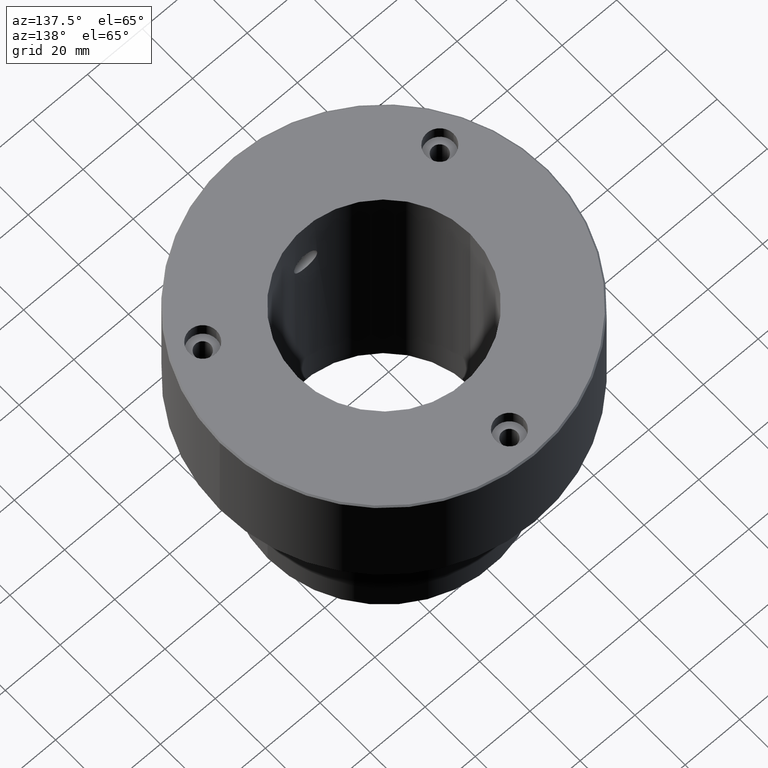
[diagram: clean part render]
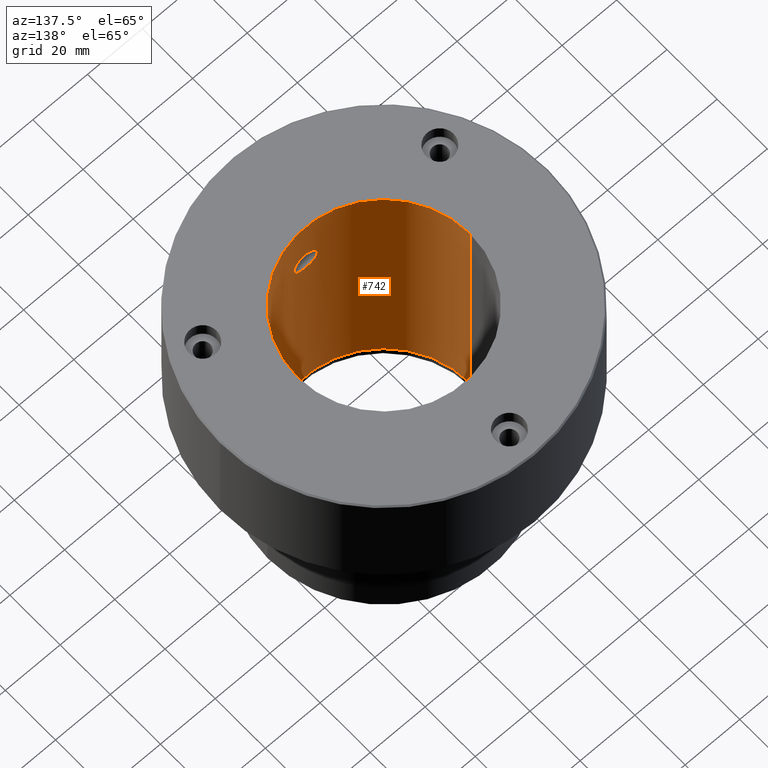
[diagram: same view with one face highlighted and labeled with its STEP entity id]
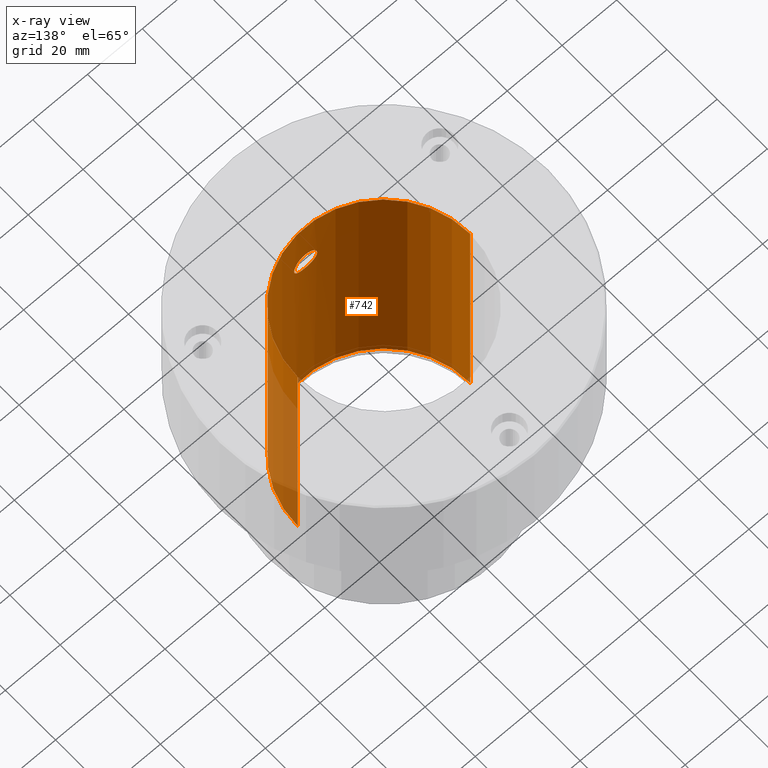
[diagram: x-ray of the same camera — body ghosted, the highlighted face saturated]
A machine part, auxiliary view. The second image highlights one B-rep face of the part: STEP entity #742.
The next image is the same camera in x-ray: the body ghosted, the highlighted face saturated — about 11% of this face is hidden behind the body in this view.
In plain terms, the highlighted cylindrical surface (partial cylindrical patch) has radius 31.5 mm, axis along (-0, -0, -1).
Its self-contained STEP definition (entity closure, byte-faithful):
#7 = CARTESIAN_POINT ( 'NONE',  ( -2.789438221632285497, -31.37685501241038111, -24.92371661627722901 ) ) ;
#13 = CARTESIAN_POINT ( 'NONE',  ( -2.116768885171659509, -31.42964617081862144, -25.40707835583330620 ) ) ;
#20 = EDGE_CURVE ( 'NONE', #721, #328, #95, .T. ) ;
#49 = CARTESIAN_POINT ( 'NONE',  ( 1.096031686147378892, -31.48208906275088736, -17.66921244666823654 ) ) ;
#51 = FACE_BOUND ( 'NONE', #968, .T. ) ;
#62 = CARTESIAN_POINT ( 'NONE',  ( 0.2753402555395045304, -31.50000000000000711, -17.53359999999997854 ) ) ;
#68 = ORIENTED_EDGE ( 'NONE', *, *, #305, .T. ) ;
#71 = EDGE_CURVE ( 'NONE', #328, #886, #974, .T. ) ;
#72 = DIRECTION ( 'NONE',  ( -0.000000000000000000, -0.000000000000000000, -1.000000000000000000 ) ) ;
#88 = CARTESIAN_POINT ( 'NONE',  ( -0.5490819211251015686, -31.49639201687338996, -17.56029671505637779 ) ) ;
#95 = LINE ( 'NONE', #791, #875 ) ;
#104 = CARTESIAN_POINT ( 'NONE',  ( -3.177537229677775521, -31.33993065110605869, -24.53508526022974223 ) ) ;
#122 = CARTESIAN_POINT ( 'NONE',  ( -2.577518820444385739, -31.39521883450312245, -25.09833232284227122 ) ) ;
#133 = CARTESIAN_POINT ( 'NONE',  ( 0.000000000000000000, -31.50000000000000000, -25.96639999999999304 ) ) ;
#137 = CARTESIAN_POINT ( 'NONE',  ( 4.216501647894116189, -31.21651988713486858, -21.47620826544703121 ) ) ;
#144 = CARTESIAN_POINT ( 'NONE',  ( 2.787839427296237904, -31.37699820103176407, -24.92513133010917414 ) ) ;
#155 = CARTESIAN_POINT ( 'NONE',  ( 1.092483770419792055, -31.48220538502145160, -25.83168033740922453 ) ) ;
#168 = CARTESIAN_POINT ( 'NONE',  ( -31.50000000000000000, 0.000000000000000000, 0.000000000000000000 ) ) ;
#174 = VERTEX_POINT ( 'NONE', #389 ) ;
#191 = ORIENTED_EDGE ( 'NONE', *, *, #979, .F. ) ;
#195 = DIRECTION ( 'NONE',  ( 0.000000000000000000, 0.000000000000000000, -1.000000000000000000 ) ) ;
#201 = CARTESIAN_POINT ( 'NONE',  ( -4.080981536979150448, -31.23457276632855795, -20.65494427231923780 ) ) ;
#207 = CARTESIAN_POINT ( 'NONE',  ( 0.000000000000000000, 0.000000000000000000, 0.000000000000000000 ) ) ;
#219 = CARTESIAN_POINT ( 'NONE',  ( -3.355185323269014752, -31.32118112464841175, -24.31839750232607500 ) ) ;
#248 = CARTESIAN_POINT ( 'NONE',  ( 4.189484159320465473, -31.22020514177603800, -22.30072531479667930 ) ) ;
#256 = CARTESIAN_POINT ( 'NONE',  ( 3.657961578699897132, -31.28726397873010612, -19.63511858892734097 ) ) ;
#262 = ORIENTED_EDGE ( 'NONE', *, *, #71, .T. ) ;
#272 = ORIENTED_EDGE ( 'NONE', *, *, #1030, .F. ) ;
#300 = CARTESIAN_POINT ( 'NONE',  ( -1.872252269238578348, -31.44533507720836951, -25.53788402240506628 ) ) ;
#305 = EDGE_CURVE ( 'NONE', #544, #174, #442, .T. ) ;
#311 = CARTESIAN_POINT ( 'NONE',  ( -3.657892446596798131, -31.28727404191285899, -19.63491600475083487 ) ) ;
#323 = CARTESIAN_POINT ( 'NONE',  ( -3.999682397800317979, -31.24522307244798469, -20.38729350833537879 ) ) ;
#328 = VERTEX_POINT ( 'NONE', #364 ) ;
#335 = CARTESIAN_POINT ( 'NONE',  ( 2.571177404482058115, -31.39572915820478727, -25.10305257271626900 ) ) ;
#341 = CARTESIAN_POINT ( 'NONE',  ( 31.50000000000000000, 3.857637417314162689E-15, 0.000000000000000000 ) ) ;
#342 = CARTESIAN_POINT ( 'NONE',  ( 4.081185421079526421, -31.23454629949885941, -20.65545081509109338 ) ) ;
#358 = CARTESIAN_POINT ( 'NONE',  ( 0.2789242127397895121, -31.50000000000000711, -25.96639999999998594 ) ) ;
#363 = FACE_OUTER_BOUND ( 'NONE', #645, .T. ) ;
#364 = CARTESIAN_POINT ( 'NONE',  ( 31.50000000000000000, 3.857637417314162689E-15, -95.00000000000000000 ) ) ;
#389 = CARTESIAN_POINT ( 'NONE',  ( 5.163600038750042522E-16, -31.50000000000000000, -17.53359999999998209 ) ) ;
#393 = LINE ( 'NONE', #168, #708 ) ;
#405 = CARTESIAN_POINT ( 'NONE',  ( -1.099414226425570851, -31.48198808708304597, -25.83001488088934394 ) ) ;
#418 = CARTESIAN_POINT ( 'NONE',  ( -4.082524396812072354, -31.23437050868890452, -22.83931888601506088 ) ) ;
#438 = CARTESIAN_POINT ( 'NONE',  ( 1.869330451819557926, -31.44552291074878525, -17.96054708733421634 ) ) ;
#442 = B_SPLINE_CURVE_WITH_KNOTS ( 'NONE', 3,
 ( #1118, #358, #730, #155, #1108, #1008, #912, #335, #144, #901, #812, #717, #735, #550, #826, #248, #839, #137, #531, #342, #1132, #723, #256, #643, #464, #535, #928, #632, #438, #1035, #49, #1207, #62, #818 ),
 .UNSPECIFIED., .F., .F.,
 ( 4, 2, 2, 2, 2, 2, 2, 2, 2, 2, 2, 2, 2, 2, 2, 2, 4 ),
 ( 0.000000000000000000, 0.0008248247548736507189, 0.001649649509747301438, 0.002474474264620952265, 0.003299299019494602875, 0.004124123774368253920, 0.004948948529241904530, 0.005773773284115555141, 0.006598598038989205751, 0.007423422793862856361, 0.008248247548736507839, 0.009073072303610157582, 0.009897897058483809060, 0.01072272181335745880, 0.01154754656823111028, 0.01237237132310476002, 0.01319719607797841150 ),
 .UNSPECIFIED. ) ;
#444 = AXIS2_PLACEMENT_3D ( 'NONE', #574, #195, #584 ) ;
#464 = CARTESIAN_POINT ( 'NONE',  ( 3.178300225570884319, -31.33986931886829908, -18.96544376317076797 ) ) ;
#485 = CARTESIAN_POINT ( 'NONE',  ( -1.093694017360391069, -31.48218598561831882, -17.66846377348382902 ) ) ;
#500 = CARTESIAN_POINT ( 'NONE',  ( -2.785021029347818811, -31.37724986169858354, -18.57238987496263860 ) ) ;
#504 = ORIENTED_EDGE ( 'NONE', *, *, #1013, .T. ) ;
#510 = CARTESIAN_POINT ( 'NONE',  ( 0.000000000000000000, -31.50000000000000000, -25.96639999999999304 ) ) ;
#512 = AXIS2_PLACEMENT_3D ( 'NONE', #722, #1107, #738 ) ;
#531 = CARTESIAN_POINT ( 'NONE',  ( 4.189000457733439653, -31.22026957189638452, -21.19647716892087885 ) ) ;
#535 = CARTESIAN_POINT ( 'NONE',  ( 2.785099017519343079, -31.37725648794392797, -18.57217539462271105 ) ) ;
#544 = VERTEX_POINT ( 'NONE', #133 ) ;
#550 = CARTESIAN_POINT ( 'NONE',  ( 4.000044745285875614, -31.24517361396253179, -23.11127430354476076 ) ) ;
#574 = CARTESIAN_POINT ( 'NONE',  ( 0.000000000000000000, 0.000000000000000000, -95.00000000000000000 ) ) ;
#580 = CARTESIAN_POINT ( 'NONE',  ( 5.163600038750042522E-16, -31.50000000000000000, -17.53359999999998209 ) ) ;
#584 = DIRECTION ( 'NONE',  ( -1.000000000000000000, 0.000000000000000000, 0.000000000000000000 ) ) ;
#587 = CARTESIAN_POINT ( 'NONE',  ( -4.188600069332103715, -31.22032311907467772, -21.19395430845818495 ) ) ;
#592 = DIRECTION ( 'NONE',  ( 0.000000000000000000, 0.000000000000000000, -1.000000000000000000 ) ) ;
#603 = CARTESIAN_POINT ( 'NONE',  ( -0.2788568832727722491, -31.50000000000000711, -25.96639999999999660 ) ) ;
#609 = CARTESIAN_POINT ( 'NONE',  ( -4.216592604761228991, -31.21650760164638072, -22.02580714341471335 ) ) ;
#632 = CARTESIAN_POINT ( 'NONE',  ( 2.116018492854554900, -31.42968074488008412, -18.09269636181037555 ) ) ;
#643 = CARTESIAN_POINT ( 'NONE',  ( 3.352817027947558870, -31.32143336699475000, -19.17861432856713932 ) ) ;
#645 = EDGE_LOOP ( 'NONE', ( #272, #691, #262, #191 ) ) ;
#687 = AXIS2_PLACEMENT_3D ( 'NONE', #207, #592, #1072 ) ;
#691 = ORIENTED_EDGE ( 'NONE', *, *, #20, .T. ) ;
#694 = CARTESIAN_POINT ( 'NONE',  ( -1.365274811713550251, -31.47142277314579673, -25.74867710816479516 ) ) ;
#708 = VECTOR ( 'NONE', #72, 1000.000000000000000 ) ;
#717 = CARTESIAN_POINT ( 'NONE',  ( 3.658936764972762212, -31.28715759557277565, -23.86354275516069023 ) ) ;
#721 = VERTEX_POINT ( 'NONE', #341 ) ;
#722 = CARTESIAN_POINT ( 'NONE',  ( 0.000000000000000000, 0.000000000000000000, 0.000000000000000000 ) ) ;
#723 = CARTESIAN_POINT ( 'NONE',  ( 3.789914407515323269, -31.27135923786751448, -19.88157441512361245 ) ) ;
#730 = CARTESIAN_POINT ( 'NONE',  ( 0.5531247502569180963, -31.49629866673159384, -25.93899608212720054 ) ) ;
#735 = CARTESIAN_POINT ( 'NONE',  ( 3.789707796714226973, -31.27138223594335642, -23.61856643160039226 ) ) ;
#738 = DIRECTION ( 'NONE',  ( -1.000000000000000000, 0.000000000000000000, 0.000000000000000000 ) ) ;
#742 = ADVANCED_FACE ( 'NONE', ( #51, #363 ), #895, .F. ) ;
#747 = CIRCLE ( 'NONE', #687, 31.50000000000000000 ) ;
#781 = CARTESIAN_POINT ( 'NONE',  ( -0.5544945652488388887, -31.49629853385337697, -25.93900571098378904 ) ) ;
#787 = CARTESIAN_POINT ( 'NONE',  ( -2.572916609217842598, -31.39559516983035081, -18.39816485329182072 ) ) ;
#791 = CARTESIAN_POINT ( 'NONE',  ( 31.50000000000000000, 3.857637417314162689E-15, 0.000000000000000000 ) ) ;
#792 = CARTESIAN_POINT ( 'NONE',  ( -3.173915342794780603, -31.34030013280258231, -18.96076898815793754 ) ) ;
#807 = VERTEX_POINT ( 'NONE', #1199 ) ;
#812 = CARTESIAN_POINT ( 'NONE',  ( 3.350709937039302755, -31.32166648788187757, -24.32441724391902582 ) ) ;
#818 = CARTESIAN_POINT ( 'NONE',  ( 5.163600038750042522E-16, -31.50000000000000000, -17.53359999999998209 ) ) ;
#826 = CARTESIAN_POINT ( 'NONE',  ( 4.081130230927447755, -31.23455398519380921, -22.84519492866113666 ) ) ;
#839 = CARTESIAN_POINT ( 'NONE',  ( 4.216297774242205421, -31.21654742423481110, -22.02691359577226393 ) ) ;
#860 = CARTESIAN_POINT ( 'NONE',  ( -1.359551755435712828, -31.47167243648189938, -17.74936670384732196 ) ) ;
#872 = CARTESIAN_POINT ( 'NONE',  ( -3.660879354066949976, -31.28692407302895973, -23.85995180949732131 ) ) ;
#875 = VECTOR ( 'NONE', #1183, 1000.000000000000000 ) ;
#883 = CARTESIAN_POINT ( 'NONE',  ( -3.351946165651679355, -31.32152855508807221, -19.17741096161822156 ) ) ;
#886 = VERTEX_POINT ( 'NONE', #934 ) ;
#895 = CYLINDRICAL_SURFACE ( 'NONE', #512, 31.50000000000000000 ) ;
#901 = CARTESIAN_POINT ( 'NONE',  ( 3.176290901383115539, -31.34005808689143535, -24.53651821196616467 ) ) ;
#912 = CARTESIAN_POINT ( 'NONE',  ( 2.113046718731982576, -31.42988698969701744, -25.40909119388602733 ) ) ;
#928 = CARTESIAN_POINT ( 'NONE',  ( 2.572421688230232650, -31.39562091510710573, -18.39797809942413664 ) ) ;
#934 = CARTESIAN_POINT ( 'NONE',  ( -31.50000000000000000, 0.000000000000000000, -95.00000000000000000 ) ) ;
#958 = CARTESIAN_POINT ( 'NONE',  ( -0.2752737912032879319, -31.50000000000000000, -17.53359999999998919 ) ) ;
#964 = CARTESIAN_POINT ( 'NONE',  ( -3.790195551493780179, -31.27132471518023848, -23.61781387726792403 ) ) ;
#968 = EDGE_LOOP ( 'NONE', ( #68, #504 ) ) ;
#970 = CARTESIAN_POINT ( 'NONE',  ( -3.787554278465478319, -31.27164621055290894, -19.87680464089393695 ) ) ;
#974 = CIRCLE ( 'NONE', #444, 31.50000000000000000 ) ;
#979 = EDGE_CURVE ( 'NONE', #807, #886, #393, .T. ) ;
#1006 = B_SPLINE_CURVE_WITH_KNOTS ( 'NONE', 3,
 ( #580, #958, #88, #485, #860, #1190, #1079, #787, #500, #792, #883, #311, #970, #323, #201, #587, #1069, #609, #1063, #418, #1184, #964, #872, #219, #104, #7, #122, #13, #300, #694, #405, #781, #603, #510 ),
 .UNSPECIFIED., .F., .F.,
 ( 4, 2, 2, 2, 2, 2, 2, 2, 2, 2, 2, 2, 2, 2, 2, 2, 4 ),
 ( 0.01319719607797841150, 0.01402182172854848745, 0.01484644737911856513, 0.01567107302968864108, 0.01649569868025871702, 0.01732032433082879297, 0.01814494998139887239, 0.01896957563196894486, 0.01979420128253902428, 0.02061882693310909676, 0.02144345258367917617, 0.02226807823424924865, 0.02309270388481932806, 0.02391732953538940054, 0.02474195518595947649, 0.02556658083652955243, 0.02639120648709962491 ),
 .UNSPECIFIED. ) ;
#1008 = CARTESIAN_POINT ( 'NONE',  ( 1.870970572054355907, -31.44542567394414334, -25.53864975535802273 ) ) ;
#1013 = EDGE_CURVE ( 'NONE', #174, #544, #1006, .T. ) ;
#1030 = EDGE_CURVE ( 'NONE', #721, #807, #747, .T. ) ;
#1035 = CARTESIAN_POINT ( 'NONE',  ( 1.358895382220321801, -31.47171286741012253, -17.74903098542473856 ) ) ;
#1063 = CARTESIAN_POINT ( 'NONE',  ( -4.189415304872588841, -31.22021309869488803, -22.29992771278976704 ) ) ;
#1069 = CARTESIAN_POINT ( 'NONE',  ( -4.216205360704832650, -31.21655990647492374, -21.46833507273799668 ) ) ;
#1072 = DIRECTION ( 'NONE',  ( -1.000000000000000000, 0.000000000000000000, 0.000000000000000000 ) ) ;
#1079 = CARTESIAN_POINT ( 'NONE',  ( -2.112476989018446716, -31.42993377207039529, -18.09047274917034898 ) ) ;
#1107 = DIRECTION ( 'NONE',  ( -0.000000000000000000, -0.000000000000000000, -1.000000000000000000 ) ) ;
#1108 = CARTESIAN_POINT ( 'NONE',  ( 1.360461699726994045, -31.47164550290651519, -25.75044270223230569 ) ) ;
#1118 = CARTESIAN_POINT ( 'NONE',  ( 0.000000000000000000, -31.50000000000000000, -25.96639999999999304 ) ) ;
#1132 = CARTESIAN_POINT ( 'NONE',  ( 4.001442690795022017, -31.24499665854258268, -20.39245745009742450 ) ) ;
#1183 = DIRECTION ( 'NONE',  ( -0.000000000000000000, -0.000000000000000000, -1.000000000000000000 ) ) ;
#1184 = CARTESIAN_POINT ( 'NONE',  ( -4.001462490465106825, -31.24499367415853968, -23.10742732257704901 ) ) ;
#1190 = CARTESIAN_POINT ( 'NONE',  ( -1.867006653790303394, -31.44564887356635907, -17.95952062389248027 ) ) ;
#1199 = CARTESIAN_POINT ( 'NONE',  ( -31.50000000000000000, 0.000000000000000000, 0.000000000000000000 ) ) ;
#1207 = CARTESIAN_POINT ( 'NONE',  ( 0.5550439826906363727, -31.49627189667528171, -17.56120080575048803 ) ) ;